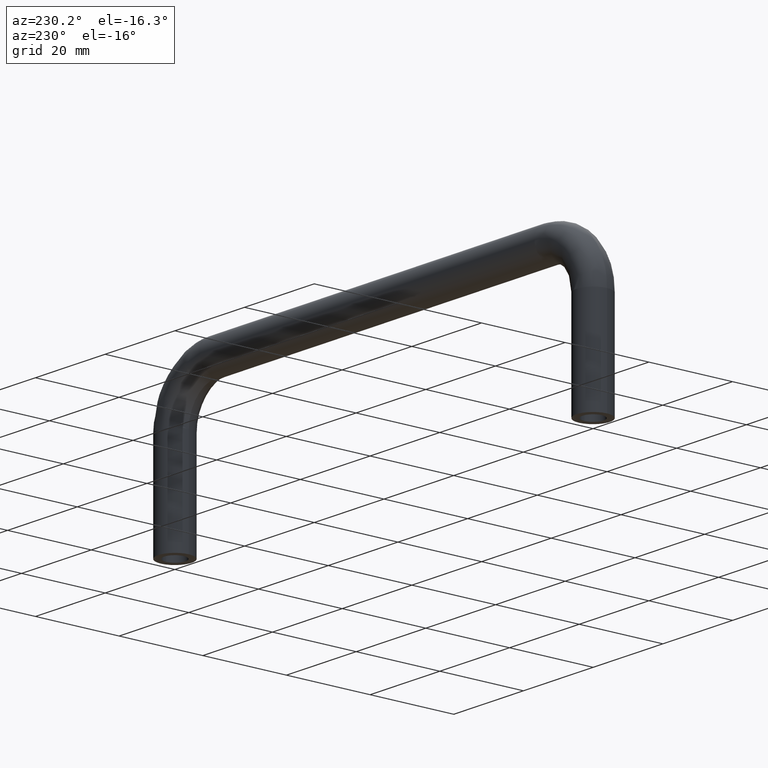
[diagram: clean part render]
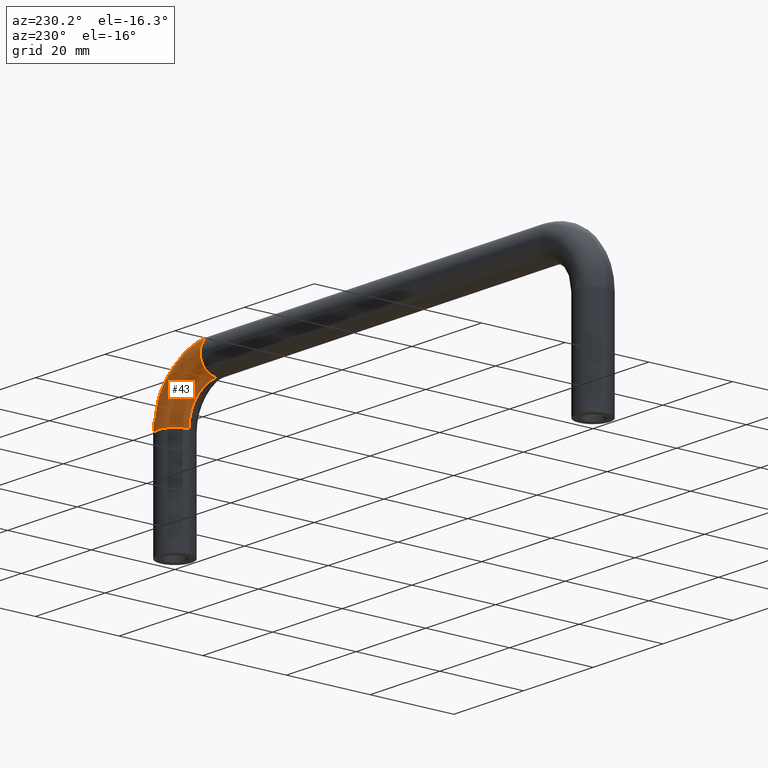
[diagram: same view with one face highlighted and labeled with its STEP entity id]
A machine part, auxiliary view. The second image highlights one B-rep face of the part: STEP entity #43.
In plain terms, the highlighted face is a freeform B-spline surface patch.
Its self-contained STEP definition (entity closure, byte-faithful):
#43=ADVANCED_FACE('',(#90),#89,.T.);
#89=( BOUNDED_SURFACE() B_SPLINE_SURFACE( 2,2,((#301,#302,#303),(#304,#305,#306),(#307,#308,#309),(#310,#311,#312),(#313,#314,#315),(#316,#317,#318),(#319,#320,#321)), .UNSPECIFIED.,.F.,.F.,.F.) B_SPLINE_SURFACE_WITH_KNOTS((3,2,2,3),(3,3),(-3.14205275907E+00,-2.09454847089E+00,-1.04704418270E+00,4.60105483204E-04),(0.00000000000E+00,1.57079632679E+00), .UNSPECIFIED. ) GEOMETRIC_REPRESENTATION_ITEM() RATIONAL_B_SPLINE_SURFACE(((1.00000000000E+00,7.07106781187E-01,1.00000000000E+00),(8.65948709352E-01,6.12318204543E-01,8.65948709352E-01),(1.00000000000E+00,7.07106781187E-01,1.00000000000E+00),(8.65948709352E-01,6.12318204543E-01,8.65948709352E-01),(1.00000000000E+00,7.07106781187E-01,1.00000000000E+00),(8.65948709352E-01,6.12318204543E-01,8.65948709352E-01),(1.00000000000E+00,7.07106781187E-01,1.00000000000E+00))) REPRESENTATION_ITEM('') SURFACE() );
#90=FACE_OUTER_BOUND('',#322,.T.);
#301=CARTESIAN_POINT('',(4.79999999995E+01,-1.84042186788E-03,4.23393965221E-07));
#302=CARTESIAN_POINT('',(5.60000004229E+01,-1.84042186788E-03,4.23393965221E-07));
#303=CARTESIAN_POINT('',(5.60000004229E+01,-1.84042186788E-03,-8.00000000000E+00));
#304=CARTESIAN_POINT('',(4.79999999995E+01,2.30837844810E+00,-1.06252105052E-03));
#305=CARTESIAN_POINT('',(5.59989374784E+01,2.30837844810E+00,-1.06252105052E-03));
#306=CARTESIAN_POINT('',(5.59989374784E+01,2.30837844810E+00,-8.00000000000E+00));
#307=CARTESIAN_POINT('',(4.79999999995E+01,3.46379483741E+00,1.99946873947E+00));
#308=CARTESIAN_POINT('',(5.79994687390E+01,3.46379483741E+00,1.99946873947E+00));
#309=CARTESIAN_POINT('',(5.79994687390E+01,3.46379483741E+00,-8.00000000000E+00));
#310=CARTESIAN_POINT('',(4.79999999995E+01,4.61921122672E+00,4.00000000000E+00));
#311=CARTESIAN_POINT('',(5.99999999995E+01,4.61921122672E+00,4.00000000000E+00));
#312=CARTESIAN_POINT('',(5.99999999995E+01,4.61921122672E+00,-8.00000000000E+00));
#313=CARTESIAN_POINT('',(4.79999999995E+01,3.46379483741E+00,6.00053126053E+00));
#314=CARTESIAN_POINT('',(6.20005312600E+01,3.46379483741E+00,6.00053126053E+00));
#315=CARTESIAN_POINT('',(6.20005312600E+01,3.46379483741E+00,-8.00000000000E+00));
#316=CARTESIAN_POINT('',(4.79999999995E+01,2.30837844810E+00,8.00106252105E+00));
#317=CARTESIAN_POINT('',(6.40010625206E+01,2.30837844810E+00,8.00106252105E+00));
#318=CARTESIAN_POINT('',(6.40010625206E+01,2.30837844810E+00,-8.00000000000E+00));
#319=CARTESIAN_POINT('',(4.79999999995E+01,-1.84042186788E-03,7.99999957661E+00));
#320=CARTESIAN_POINT('',(6.39999995761E+01,-1.84042186788E-03,7.99999957661E+00));
#321=CARTESIAN_POINT('',(6.39999995761E+01,-1.84042186788E-03,-8.00000000000E+00));
#322=EDGE_LOOP('',(#494,#495,#496,#497));
#494=ORIENTED_EDGE('',*,*,#562,.T.);
#495=ORIENTED_EDGE('',*,*,#553,.T.);
#496=ORIENTED_EDGE('',*,*,#563,.F.);
#497=ORIENTED_EDGE('',*,*,#555,.F.);
#553=EDGE_CURVE('',#594,#586,#595,.T.);
#555=EDGE_CURVE('',#601,#587,#608,.T.);
#562=EDGE_CURVE('',#601,#594,#656,.T.);
#563=EDGE_CURVE('',#587,#586,#662,.T.);
#586=VERTEX_POINT('',#810);
#587=VERTEX_POINT('',#811);
#594=VERTEX_POINT('',#816);
#595=CIRCLE('',#820,8.00000000000E+00);
#601=VERTEX_POINT('',#821);
#608=(BOUNDED_CURVE() B_SPLINE_CURVE(3,(#826,#827,#828,#829,#830,#831,#832),.UNSPECIFIED.,.F.,.F.) B_SPLINE_CURVE_WITH_KNOTS((4,1,1,1,4),(1.57079632680E+00,2.05431411377E+00,2.35619449020E+00,2.65807486662E+00,3.14159265359E+00),.UNSPECIFIED.) CURVE() GEOMETRIC_REPRESENTATION_ITEM() RATIONAL_B_SPLINE_CURVE((1.00000000000E+00,1.00000000000E+00,1.00000000000E+00,1.00000000000E+00,1.00000000000E+00,1.00000000000E+00,1.00000000000E+00)) REPRESENTATION_ITEM('') );
#656=CIRCLE('',#866,4.00000000000E+00);
#662=CIRCLE('',#870,4.00000000000E+00);
#810=CARTESIAN_POINT('',(4.79999999995E+01,4.44089209850E-16,5.32907051820E-15));
#811=CARTESIAN_POINT('',(4.79999999995E+01,0.00000000000E+00,8.00000000000E+00));
#816=CARTESIAN_POINT('',(5.59999999995E+01,4.44089209850E-16,-8.00000000000E+00));
#817=CARTESIAN_POINT('',(4.79999999995E+01,-4.89842541529E-16,-8.00000000000E+00));
#818=DIRECTION('',(1.81712644615E-45,-1.00000000000E+00,6.84534503202E-33));
#819=DIRECTION('',(-1.00000000000E+00,-0.00000000000E+00,2.65454325188E-13));
#820=AXIS2_PLACEMENT_3D('',#817,#818,#819);
#821=CARTESIAN_POINT('',(6.39999999995E+01,0.00000000000E+00,-8.00000000000E+00));
#826=CARTESIAN_POINT('',(6.39999999995E+01,0.00000000000E+00,-7.99999999996E+00));
#827=CARTESIAN_POINT('',(6.40052129147E+01,0.00000000000E+00,-5.41993676170E+00));
#828=CARTESIAN_POINT('',(6.29669603454E+01,0.00000000000E+00,-1.24343635425E+00));
#829=CARTESIAN_POINT('',(5.94874213830E+01,0.00000000000E+00,3.48742138358E+00));
#830=CARTESIAN_POINT('',(5.47565636451E+01,0.00000000000E+00,6.96696034596E+00));
#831=CARTESIAN_POINT('',(5.05800632377E+01,0.00000000000E+00,8.00521291529E+00));
#832=CARTESIAN_POINT('',(4.79999999994E+01,0.00000000000E+00,8.00000000000E+00));
#863=CARTESIAN_POINT('',(5.99999999995E+01,0.00000000000E+00,-8.00000000000E+00));
#864=DIRECTION('',(-0.00000000000E+00,0.00000000000E+00,1.00000000000E+00));
#865=DIRECTION('',(-1.00000000000E+00,-0.00000000000E+00,-0.00000000000E+00));
#866=AXIS2_PLACEMENT_3D('',#863,#864,#865);
#867=CARTESIAN_POINT('',(4.79999999995E+01,0.00000000000E+00,4.00000000000E+00));
#868=DIRECTION('',(-1.00000000000E+00,0.00000000000E+00,0.00000000000E+00));
#869=DIRECTION('',(-0.00000000000E+00,-0.00000000000E+00,-1.00000000000E+00));
#870=AXIS2_PLACEMENT_3D('',#867,#868,#869);